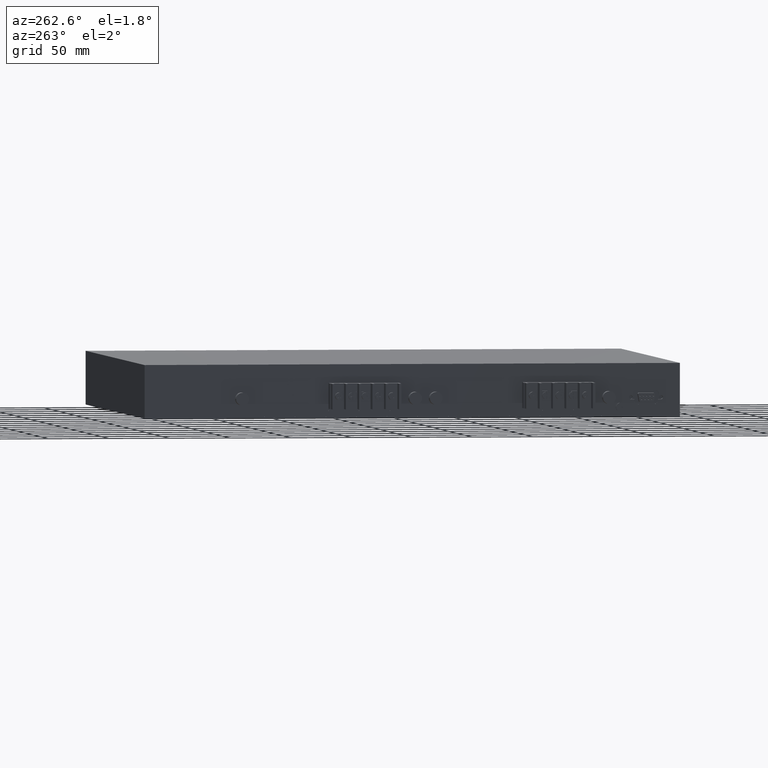
[diagram: clean part render]
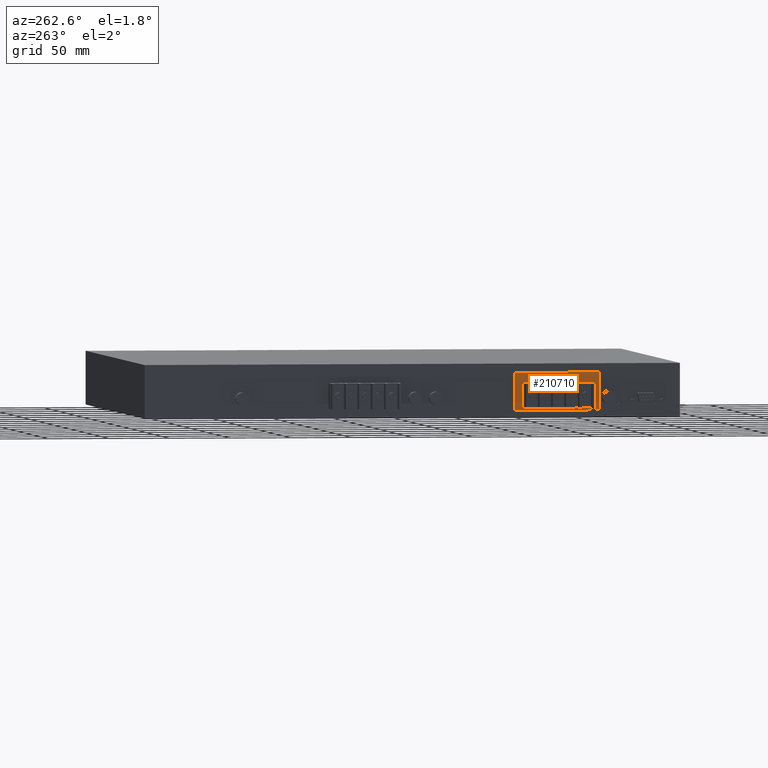
[diagram: same view with one face highlighted and labeled with its STEP entity id]
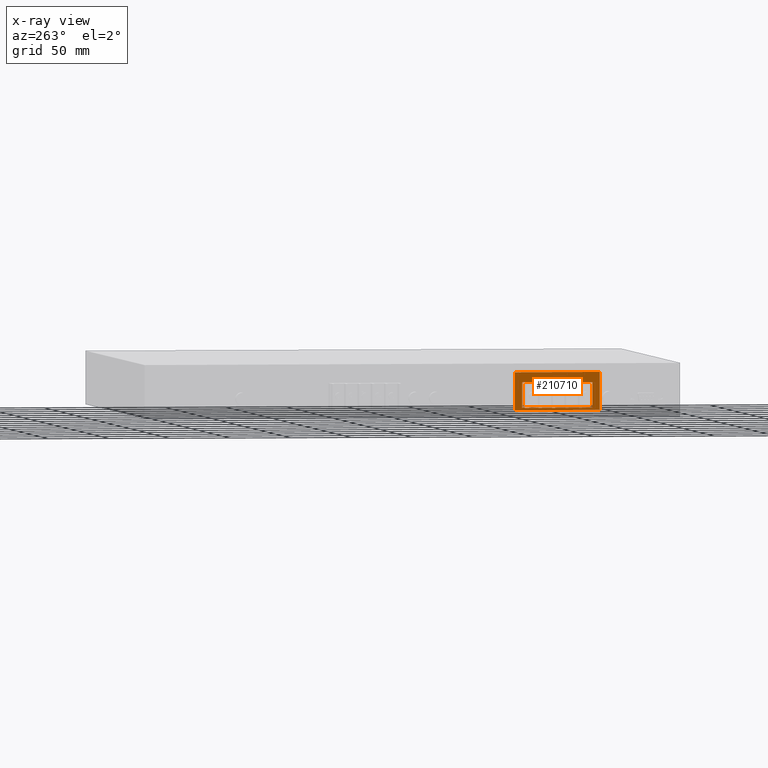
[diagram: x-ray of the same camera — body ghosted, the highlighted face saturated]
A machine part, auxiliary view. The second image highlights one B-rep face of the part: STEP entity #210710.
The next image is the same camera in x-ray: the body ghosted, the highlighted face saturated — about 0% of this face is hidden behind the body in this view.
In plain terms, the highlighted planar face has unit normal (-1, 0, 0).
Its self-contained STEP definition (entity closure, byte-faithful):
#98070=CARTESIAN_POINT('',(-148.593986957435,-10.9963677763395,
0.199999999980264));
#98080=VERTEX_POINT('',#98070);
#98110=CARTESIAN_POINT('',(-148.593986957435,0.,0.199999999980264));
#98120=DIRECTION('',(0.,-1.,0.));
#98130=VECTOR('',#98120,1.);
#98140=LINE('',#98110,#98130);
#98150=CARTESIAN_POINT('',(-148.593986957435,-31.9963677763395,
0.199999999980264));
#98160=VERTEX_POINT('',#98150);
#98170=EDGE_CURVE('',#98080,#98160,#98140,.T.);
#100890=CARTESIAN_POINT('',(-90.5939869574353,-10.9963677763395,
0.199999999980264));
#100900=VERTEX_POINT('',#100890);
#100980=CARTESIAN_POINT('',(-90.5939869574353,-31.9963677763395,
0.199999999980264));
#100990=VERTEX_POINT('',#100980);
#101020=CARTESIAN_POINT('',(-90.5939869574353,0.,0.199999999980264));
#101030=DIRECTION('',(0.,1.,0.));
#101040=VECTOR('',#101030,1.);
#101050=LINE('',#101020,#101040);
#101060=EDGE_CURVE('',#100990,#100900,#101050,.T.);
#160950=CARTESIAN_POINT('',(-154.593986957435,0.,0.199999999980264));
#160960=DIRECTION('',(0.,1.,0.));
#160970=VECTOR('',#160960,1.);
#160980=LINE('',#160950,#160970);
#160990=CARTESIAN_POINT('',(-154.593986957435,-33.7963677763396,
0.199999999980264));
#161000=VERTEX_POINT('',#160990);
#161010=CARTESIAN_POINT('',(-154.593986957435,-2.79636777633966,
0.199999999980264));
#161020=VERTEX_POINT('',#161010);
#161030=EDGE_CURVE('',#161000,#161020,#160980,.T.);
#161420=CARTESIAN_POINT('',(0.,-33.7963677763396,0.199999999980264));
#161430=DIRECTION('',(-1.,0.,0.));
#161440=VECTOR('',#161430,1.);
#161450=LINE('',#161420,#161440);
#161460=CARTESIAN_POINT('',(-84.593986957435,-33.7963677763396,
0.199999999980264));
#161470=VERTEX_POINT('',#161460);
#161480=EDGE_CURVE('',#161470,#161000,#161450,.T.);
#161730=CARTESIAN_POINT('',(-84.593986957435,0.,0.199999999980264));
#161740=DIRECTION('',(0.,-1.,0.));
#161750=VECTOR('',#161740,1.);
#161760=LINE('',#161730,#161750);
#161770=CARTESIAN_POINT('',(-84.593986957435,-2.79636777633966,
0.199999999980264));
#161780=VERTEX_POINT('',#161770);
#161790=EDGE_CURVE('',#161780,#161470,#161760,.T.);
#162040=CARTESIAN_POINT('',(0.,-2.79636777633966,0.199999999980264));
#162050=DIRECTION('',(1.,0.,0.));
#162060=VECTOR('',#162050,1.);
#162070=LINE('',#162040,#162060);
#162080=EDGE_CURVE('',#161020,#161780,#162070,.T.);
#182720=CARTESIAN_POINT('',(0.,-31.9963677763395,0.199999999980264));
#182730=DIRECTION('',(-1.,0.,0.));
#182740=VECTOR('',#182730,1.);
#182750=LINE('',#182720,#182740);
#182760=EDGE_CURVE('',#100990,#98160,#182750,.T.);
#199350=CARTESIAN_POINT('',(0.,-10.9963677763395,0.199999999980264));
#199360=DIRECTION('',(-1.,0.,0.));
#199370=VECTOR('',#199360,1.);
#199380=LINE('',#199350,#199370);
#199390=EDGE_CURVE('',#100900,#98080,#199380,.T.);
#210540=CARTESIAN_POINT('',(-82.843920807435,-34.5714339263396,
0.199999999980264));
#210550=DIRECTION('',(0.,0.,-1.));
#210560=DIRECTION('',(-1.,0.,0.));
#210570=AXIS2_PLACEMENT_3D('',#210540,#210550,#210560);
#210580=PLANE('',#210570);
#210590=ORIENTED_EDGE('',*,*,#161790,.T.);
#210600=ORIENTED_EDGE('',*,*,#162080,.T.);
#210610=ORIENTED_EDGE('',*,*,#161030,.T.);
#210620=ORIENTED_EDGE('',*,*,#161480,.T.);
#210630=EDGE_LOOP('',(#210620,#210610,#210600,#210590));
#210640=FACE_OUTER_BOUND('',#210630,.T.);
#210650=ORIENTED_EDGE('',*,*,#101060,.T.);
#210660=ORIENTED_EDGE('',*,*,#182760,.F.);
#210670=ORIENTED_EDGE('',*,*,#98170,.T.);
#210680=ORIENTED_EDGE('',*,*,#199390,.T.);
#210690=EDGE_LOOP('',(#210680,#210670,#210660,#210650));
#210700=FACE_BOUND('',#210690,.T.);
#210710=ADVANCED_FACE('',(#210640,#210700),#210580,.T.);